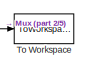
[diagram: root canvas - part 1/5, top right region]
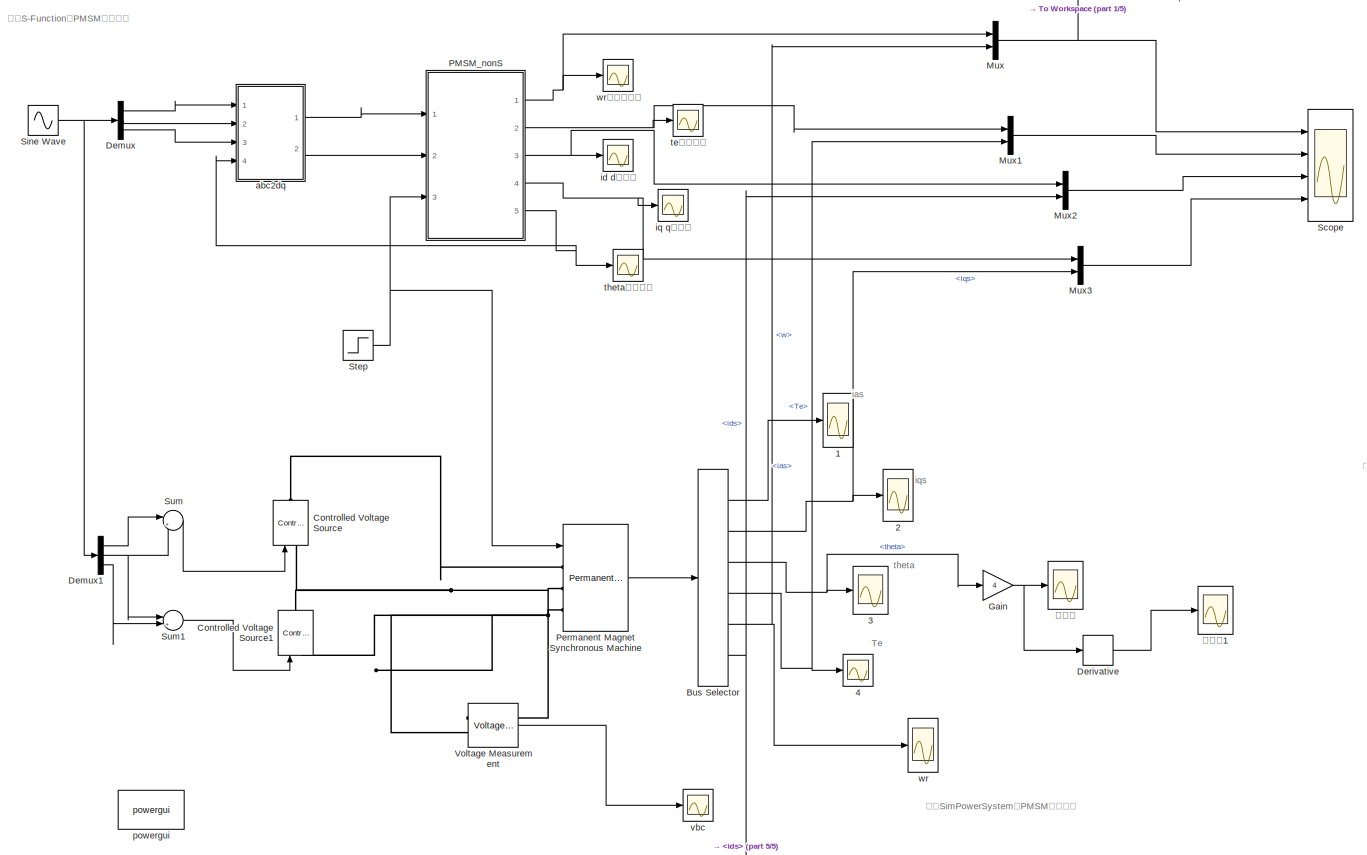
[diagram: root canvas - part 2/5, most of the canvas]
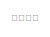
[diagram: root canvas - part 3/5, middle right region]
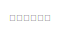
[diagram: root canvas - part 4/5, bottom left region]
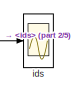
[diagram: root canvas - part 5/5, bottom center region]
MODEL slx_69c8dfcee8fb
KIND model
CONFIG AbsTol = auto
CONFIG FixedStep = auto
CONFIG MaxStep = 1e-5
CONFIG MinStep = auto
CONFIG RelTol = 1e-3
CONFIG SampleTimeConstraint = Unconstrained
CONFIG Solver = ode45
CONFIG SolverMode = Auto
CONFIG SolverName = ode45
CONFIG StartTime = 0.0
CONFIG StopTime = 1
BLOCK [Scope] 1
  Ports = [1]
  ScopeSpecificationString = Simulink.scopes.TimeScopeBlockCfg('CurrentConfiguration', extmgr.ConfigurationSet(extmgr.Configuration('Core','General UI',true),extmgr.Configuration('Core','Source UI',true),extmgr.Configuration('Sources','WiredSimulink',true,'DataLoggingVariableName','ScopeData1'),extmgr.Configuration('Visuals','Time Domain',true,'SerializedDisplays',{struct('MinYLimReal','-87.94894','MaxYLimReal','86.75456','YL...<+1370ch>
BLOCK [Scope] 2
  Ports = [1]
  ScopeSpecificationString = Simulink.scopes.TimeScopeBlockCfg('CurrentConfiguration', extmgr.ConfigurationSet(extmgr.Configuration('Core','General UI',true),extmgr.Configuration('Core','Source UI',true),extmgr.Configuration('Sources','WiredSimulink',true,'DataLoggingVariableName','ScopeData2'),extmgr.Configuration('Visuals','Time Domain',true,'SerializedDisplays',{struct('MinYLimReal','-22.90166','MaxYLimReal','31.87003','YL...<+1400ch>
BLOCK [Scope] 3
  Ports = [1]
  ScopeSpecificationString = Simulink.scopes.TimeScopeBlockCfg('CurrentConfiguration', extmgr.ConfigurationSet(extmgr.Configuration('Core','General UI',true),extmgr.Configuration('Core','Source UI',true),extmgr.Configuration('Sources','WiredSimulink',true,'DataLoggingVariableName','ScopeData3'),extmgr.Configuration('Visuals','Time Domain',true,'SerializedDisplays',{struct('MinYLimReal','-1.95615','MaxYLimReal','17.59748','YLa...<+1400ch>
BLOCK [Scope] 4
  Ports = [1]
  ScopeSpecificationString = Simulink.scopes.TimeScopeBlockCfg('CurrentConfiguration', extmgr.ConfigurationSet(extmgr.Configuration('Core','General UI',true),extmgr.Configuration('Core','Source UI',true),extmgr.Configuration('Sources','WiredSimulink',true,'DataLoggingVariableName','ScopeData4'),extmgr.Configuration('Visuals','Time Domain',true,'SerializedDisplays',{struct('MinYLimReal','-24.04674','MaxYLimReal','33.46353','YL...<+1398ch>
BLOCK [BusSelector] Bus Selector
  OutputSignals = ias,iqs,theta,Te,w,ids
  Ports = [1, 6]
BLOCK [Reference] Controlled Voltage Source  REF=powerlib/Electrical
Sources/Controlled Voltage Source
  Ports = [1, 0, 0, 0, 0, 1, 1]
  SourceBlock = powerlib/Electrical\nSources/Controlled Voltage Source
  SourceType = Controlled Voltage Source
BLOCK [Reference] Controlled Voltage Source1  REF=powerlib/Electrical
Sources/Controlled Voltage Source
  Ports = [1, 0, 0, 0, 0, 1, 1]
  SourceBlock = powerlib/Electrical\nSources/Controlled Voltage Source
  SourceType = Controlled Voltage Source
BLOCK [Demux] Demux
  DisplayOption = bar
  Outputs = 3
  Ports = [1, 3]
BLOCK [Demux] Demux1
  DisplayOption = bar
  Outputs = 3
  Ports = [1, 3]
BLOCK [Derivative] Derivative
BLOCK [Gain] Gain
  Gain = 4
  OutDataTypeStr = Inherit: Inherit via internal rule
  ParamDataTypeStr = Inherit: Inherit via internal rule
  SaturateOnIntegerOverflow = off
BLOCK [Mux] Mux
  DisplayOption = bar
  Inputs = 2
  Ports = [2, 1]
BLOCK [Mux] Mux1
  DisplayOption = bar
  Inputs = 2
  Ports = [2, 1]
BLOCK [Mux] Mux2
  DisplayOption = bar
  Inputs = 2
  Ports = [2, 1]
BLOCK [Mux] Mux3
  DisplayOption = bar
  Inputs = 2
  Ports = [2, 1]
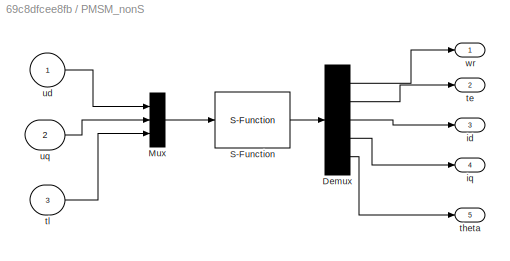
BLOCK [SubSystem] PMSM_nonS
  Ports = [3, 5]
  RequestExecContextInheritance = off
  Variant = off
BLOCK [Demux] PMSM_nonS/Demux
  DisplayOption = bar
  Outputs = 5
  Ports = [1, 5]
BLOCK [Mux] PMSM_nonS/Mux
  DisplayOption = bar
  Inputs = 3
  Ports = [3, 1]
BLOCK [S-Function] PMSM_nonS/S-Function
  EnableBusSupport = off
  FunctionName = PMSMdq
  Parameters = [L R psi_f IFP(3) IFP(1) IFP(2)],[id0,iq0,wr0,theta0]
  Ports = [1, 1]
  SFunctionDeploymentMode = off
BLOCK [Outport] PMSM_nonS/id
  IconDisplay = Port number
  Port = 3
BLOCK [Outport] PMSM_nonS/iq
  IconDisplay = Port number
  Port = 4
BLOCK [Outport] PMSM_nonS/te
  IconDisplay = Port number
  Port = 2
BLOCK [Outport] PMSM_nonS/theta
  IconDisplay = Port number
  Port = 5
BLOCK [Inport] PMSM_nonS/tl
  IconDisplay = Port number
  Port = 3
BLOCK [Inport] PMSM_nonS/ud
  IconDisplay = Port number
BLOCK [Inport] PMSM_nonS/uq
  IconDisplay = Port number
  Port = 2
BLOCK [Outport] PMSM_nonS/wr
  IconDisplay = Port number
BLOCK [Reference] Permanent Magnet Synchronous Machine  REF=powerlib/Machines/Permanent Magnet
Synchronous Machine
  Ports = [1, 1, 0, 0, 0, 3]
  SourceBlock = powerlib/Machines/Permanent Magnet\nSynchronous Machine
  SourceType = Permanent Magnet Synchronous Machine
BLOCK [Scope] Scope
  NumInputPorts = 4
  Ports = [4]
  ScopeSpecificationString = Simulink.scopes.TimeScopeBlockCfg('CurrentConfiguration', extmgr.ConfigurationSet(extmgr.Configuration('Core','General UI',true),extmgr.Configuration('Core','Source UI',true),extmgr.Configuration('Sources','WiredSimulink',true,'DataLoggingVariableName','ScopeData1'),extmgr.Configuration('Visuals','Time Domain',true,'SerializedDisplays',{struct('MinYLimReal','-14.25956','MaxYLimReal','124.90493','Y...<+3410ch>
BLOCK [Sin] Sine Wave
  Amplitude = 220*sqrt(2)
  Frequency = 20*pi
  Phase = [0 -2*pi/3 2*pi/3]-[-pi/2 -pi/2 -pi/2]
  Ports = [0, 1]
  SampleTime = 0
BLOCK [Step] Step
  After = 5
  Before = 1
  SampleTime = 0
  Time = 0.3
BLOCK [Sum] Sum
  IconShape = round
  InputSameDT = off
  Inputs = |+-
  OutDataTypeStr = Inherit: Inherit via internal rule
  Ports = [2, 1]
  SaturateOnIntegerOverflow = off
BLOCK [Sum] Sum1
  IconShape = round
  InputSameDT = off
  Inputs = |+-
  OutDataTypeStr = Inherit: Inherit via internal rule
  Ports = [2, 1]
  SaturateOnIntegerOverflow = off
BLOCK [ToWorkspace] To Workspace
  FixptAsFi = on
  MaxDataPoints = inf
  Ports = [1]
  SampleTime = -1
  Save2DSignal = 3-D array (concatenate along third dimension)
  SaveFormat = Timeseries
  VariableName = wr
BLOCK [Reference] Voltage Measurement  REF=powerlib/Measurements/Voltage Measurement
  Ports = [0, 1, 0, 0, 0, 2]
  SourceBlock = powerlib/Measurements/Voltage Measurement
  SourceType = Voltage Measurement
  UserDataPersistent = on
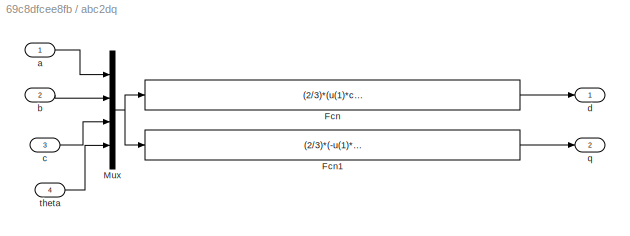
BLOCK [SubSystem] abc2dq
  Ports = [4, 2]
  RequestExecContextInheritance = off
  Variant = off
BLOCK [Fcn] abc2dq/Fcn
  Expr = (2/3)*(u(1)*cos(u(4))+u(2)*cos(u(4)-2*pi/3)+u(3)*cos(u(4)+2*pi/3))
BLOCK [Fcn] abc2dq/Fcn1
  Expr = (2/3)*(-u(1)*sin(u(4))-u(2)*sin(u(4)-2*pi/3)-u(3)*sin(u(4)+2*pi/3))
BLOCK [Mux] abc2dq/Mux
  DisplayOption = bar
  Ports = [4, 1]
BLOCK [Inport] abc2dq/a
  IconDisplay = Port number
BLOCK [Inport] abc2dq/b
  IconDisplay = Port number
  Port = 2
BLOCK [Inport] abc2dq/c
  IconDisplay = Port number
  Port = 3
BLOCK [Outport] abc2dq/d
  IconDisplay = Port number
BLOCK [Outport] abc2dq/q
  IconDisplay = Port number
  Port = 2
BLOCK [Inport] abc2dq/theta
  IconDisplay = Port number
  Port = 4
BLOCK [Scope] id d轴电流
  Ports = [1]
  ScopeSpecificationString = Simulink.scopes.TimeScopeBlockCfg('CurrentConfiguration', extmgr.ConfigurationSet(extmgr.Configuration('Core','General UI',true),extmgr.Configuration('Core','Source UI',true),extmgr.Configuration('Sources','WiredSimulink',true),extmgr.Configuration('Visuals','Time Domain',true,'SerializedDisplays',{struct('MinYLimReal','0','MaxYLimReal','100','YLabelReal','','MinYLimMag','0.00000','MaxYLimMag','85...<+1359ch>
BLOCK [Scope] ids
  Ports = [1]
  ScopeSpecificationString = Simulink.scopes.TimeScopeBlockCfg('CurrentConfiguration', extmgr.ConfigurationSet(extmgr.Configuration('Core','General UI',true),extmgr.Configuration('Core','Source UI',true),extmgr.Configuration('Sources','WiredSimulink',true,'DataLoggingVariableName','ScopeData6'),extmgr.Configuration('Visuals','Time Domain',true,'SerializedDisplays',{struct('MinYLimReal','-9.53508','MaxYLimReal','85.81571','YLa...<+1368ch>
BLOCK [Scope] iq q轴电流
  Ports = [1]
  ScopeSpecificationString = Simulink.scopes.TimeScopeBlockCfg('CurrentConfiguration', extmgr.ConfigurationSet(extmgr.Configuration('Core','General UI',true),extmgr.Configuration('Core','Source UI',true),extmgr.Configuration('Sources','WiredSimulink',true,'DataLoggingVariableName','ScopeData1'),extmgr.Configuration('Visuals','Time Domain',true,'SerializedDisplays',{struct('MinYLimReal','-50','MaxYLimReal','50','YLabelReal',''...<+1371ch>
BLOCK [Reference] powergui  REF=powerlib/powergui
  Ports = []
  Priority = 1
  SourceBlock = powerlib/powergui
  SourceType = PSB option menu block
  UserDataPersistent = on
BLOCK [Scope] te电磁转矩
  Ports = [1]
  ScopeSpecificationString = Simulink.scopes.TimeScopeBlockCfg('CurrentConfiguration', extmgr.ConfigurationSet(extmgr.Configuration('Core','General UI',true),extmgr.Configuration('Core','Source UI',true),extmgr.Configuration('Sources','WiredSimulink',true,'DataLoggingVariableName','ScopeData3'),extmgr.Configuration('Visuals','Time Domain',true,'SerializedDisplays',{struct('MinYLimReal','-50','MaxYLimReal','50','YLabelReal',''...<+1400ch>
BLOCK [Scope] theta转子位置
  Ports = [1]
  ScopeSpecificationString = Simulink.scopes.TimeScopeBlockCfg('CurrentConfiguration', extmgr.ConfigurationSet(extmgr.Configuration('Core','General UI',true),extmgr.Configuration('Core','Source UI',true),extmgr.Configuration('Sources','WiredSimulink',true,'DataLoggingVariableName','ScopeData4','DataLoggingLimitDataPoints',true,'DataLoggingSaveFormat','Array','DataLoggingDecimation','1','DataLoggingDecimateData',true),extmgr.C...<+1563ch>
BLOCK [Scope] vbc
  Ports = [1]
  ScopeSpecificationString = Simulink.scopes.TimeScopeBlockCfg('CurrentConfiguration', extmgr.ConfigurationSet(extmgr.Configuration('Core','General UI',true),extmgr.Configuration('Core','Source UI',true),extmgr.Configuration('Sources','WiredSimulink',true,'DataLoggingSaveFormat','Array','DataLoggingDecimation','1','DataLoggingDecimateData',true,'DataLoggingVariableName','ScopeData7'),extmgr.Configuration('Visuals','Time Domai...<+1512ch>
BLOCK [Scope] wr
  Ports = [1]
  ScopeSpecificationString = Simulink.scopes.TimeScopeBlockCfg('CurrentConfiguration', extmgr.ConfigurationSet(extmgr.Configuration('Core','General UI',true),extmgr.Configuration('Core','Source UI',true),extmgr.Configuration('Sources','WiredSimulink',true,'DataLoggingVariableName','ScopeData5'),extmgr.Configuration('Visuals','Time Domain',true,'SerializedDisplays',{struct('MinYLimReal','-14.22448','MaxYLimReal','124.59031','Y...<+1372ch>
BLOCK [Scope] wr转子角速度
  Ports = [1]
  ScopeSpecificationString = Simulink.scopes.TimeScopeBlockCfg('CurrentConfiguration', extmgr.ConfigurationSet(extmgr.Configuration('Core','General UI',true),extmgr.Configuration('Core','Source UI',true),extmgr.Configuration('Sources','WiredSimulink',true,'DataLoggingVariableName','ScopeData2'),extmgr.Configuration('Visuals','Time Domain',true,'SerializedDisplays',{struct('MinYLimReal','-200','MaxYLimReal','200','YLabelReal',...<+1405ch>
BLOCK [Scope] 电角度
  Ports = [1]
  ScopeSpecificationString = Simulink.scopes.TimeScopeBlockCfg('CurrentConfiguration', extmgr.ConfigurationSet(extmgr.Configuration('Core','General UI',true),extmgr.Configuration('Core','Source UI',true),extmgr.Configuration('Sources','WiredSimulink',true,'DataLoggingVariableName','ScopeData1'),extmgr.Configuration('Visuals','Time Domain',true,'SerializedDisplays',{struct('MinYLimReal','-7.82256','MaxYLimReal','70.37144','YLa...<+1422ch>
BLOCK [Scope] 电角度1
  Ports = [1]
  ScopeSpecificationString = Simulink.scopes.TimeScopeBlockCfg('CurrentConfiguration', extmgr.ConfigurationSet(extmgr.Configuration('Core','General UI',true),extmgr.Configuration('Core','Source UI',true),extmgr.Configuration('Sources','WiredSimulink',true,'DataLoggingVariableName','ScopeData2'),extmgr.Configuration('Visuals','Time Domain',true,'SerializedDisplays',{struct('MinYLimReal','-7.82256','MaxYLimReal','70.37144','YLa...<+1422ch>
ANNOTATION (root): 基于SimPowerSystem的PMSM仿真建模
ANNOTATION (root): ias
ANNOTATION (root): iqs
ANNOTATION (root): theta
ANNOTATION (root): 基于S-Function的PMSM仿真建模
ANNOTATION (root): 电机启动程序
ANNOTATION (root): Te
ANNOTATION (root): 仿真成功
LINE Bus Selector:1 -> 1:1
NET Bus Selector:2 -> 2:1, Mux3:2
NET Bus Selector:3 -> 3:1, Gain:1
NET Bus Selector:4 -> 4:1, Mux1:2
NET Bus Selector:5 -> Mux:2, wr:1
NET Bus Selector:6 -> Mux2:2, ids:1
LINE Demux1:1 -> Sum:1
NET Demux1:2 -> Sum1:1, Sum:2
LINE Demux1:3 -> Sum1:2
LINE Demux:1 -> abc2dq:1
LINE Demux:2 -> abc2dq:2
LINE Demux:3 -> abc2dq:3
LINE Derivative:1 -> 电角度1:1
NET Gain:1 -> Derivative:1, 电角度:1
LINE Mux1:1 -> Scope:2
LINE Mux2:1 -> Scope:3
LINE Mux3:1 -> Scope:4
NET Mux:1 -> Scope:1, To Workspace:1
LINE PMSM_nonS/Demux:1 -> PMSM_nonS/wr:1
LINE PMSM_nonS/Demux:2 -> PMSM_nonS/te:1
LINE PMSM_nonS/Demux:3 -> PMSM_nonS/id:1
LINE PMSM_nonS/Demux:4 -> PMSM_nonS/iq:1
LINE PMSM_nonS/Demux:5 -> PMSM_nonS/theta:1
LINE PMSM_nonS/Mux:1 -> PMSM_nonS/S-Function:1
LINE PMSM_nonS/S-Function:1 -> PMSM_nonS/Demux:1
LINE PMSM_nonS/tl:1 -> PMSM_nonS/Mux:3
LINE PMSM_nonS/ud:1 -> PMSM_nonS/Mux:1
LINE PMSM_nonS/uq:1 -> PMSM_nonS/Mux:2
NET PMSM_nonS:1 -> Mux:1, wr转子角速度:1
NET PMSM_nonS:2 -> Mux1:1, te电磁转矩:1
NET PMSM_nonS:3 -> Mux2:1, id d轴电流:1
NET PMSM_nonS:4 -> Mux3:1, iq q轴电流:1
NET PMSM_nonS:5 -> abc2dq:4, theta转子位置:1
LINE Permanent Magnet Synchronous Machine:1 -> Bus Selector:1
NET Sine Wave:1 -> Demux1:1, Demux:1
NET Step:1 -> PMSM_nonS:3, Permanent Magnet Synchronous Machine:1
LINE Sum1:1 -> Controlled Voltage Source1:1
LINE Sum:1 -> Controlled Voltage Source:1
LINE Voltage Measurement:1 -> vbc:1
LINE abc2dq/Fcn1:1 -> abc2dq/q:1
LINE abc2dq/Fcn:1 -> abc2dq/d:1
NET abc2dq/Mux:1 -> abc2dq/Fcn1:1, abc2dq/Fcn:1
LINE abc2dq/a:1 -> abc2dq/Mux:1
LINE abc2dq/b:1 -> abc2dq/Mux:2
LINE abc2dq/c:1 -> abc2dq/Mux:3
LINE abc2dq/theta:1 -> abc2dq/Mux:4
LINE abc2dq:1 -> PMSM_nonS:1
LINE abc2dq:2 -> PMSM_nonS:2
PNET net1: Controlled Voltage Source1:LConn1 -- Permanent Magnet Synchronous Machine:LConn3 -- Voltage Measurement:LConn2
PNET net2: Controlled Voltage Source1:RConn1 -- Controlled Voltage Source:LConn1 -- Permanent Magnet Synchronous Machine:LConn2 -- Voltage Measurement:LConn1
PLINE Controlled Voltage Source:RConn1 -- Permanent Magnet Synchronous Machine:LConn1
note: NET lines group one-source signal fan-out (src -> all destinations, sorted); 1:1 wires keep LINE; PNET lines group multi-terminal physical nets as a canonical sorted terminal list (undirected conserving connections); 2-terminal nets keep the pairwise PLINE form
